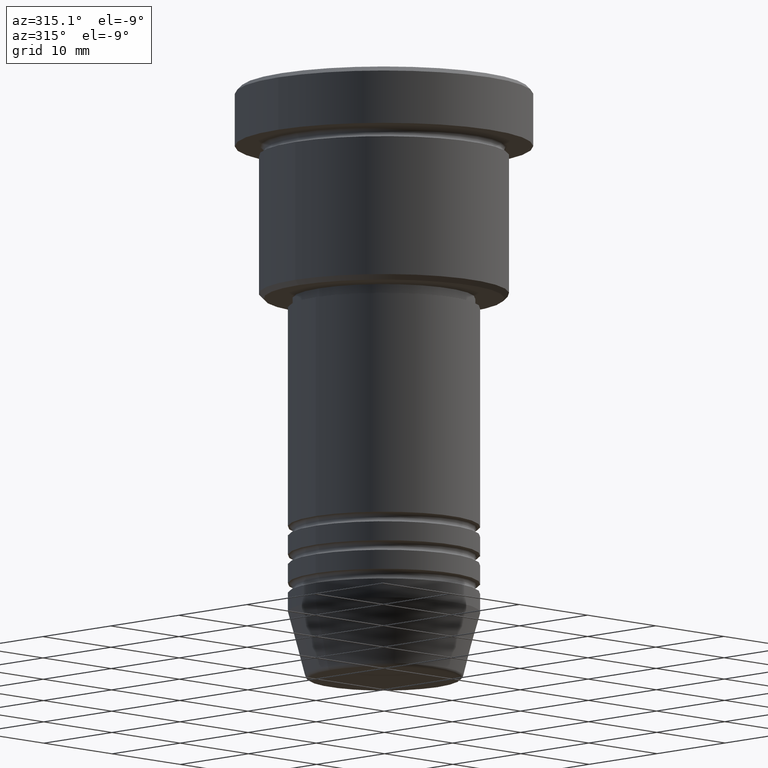
[diagram: clean part render]
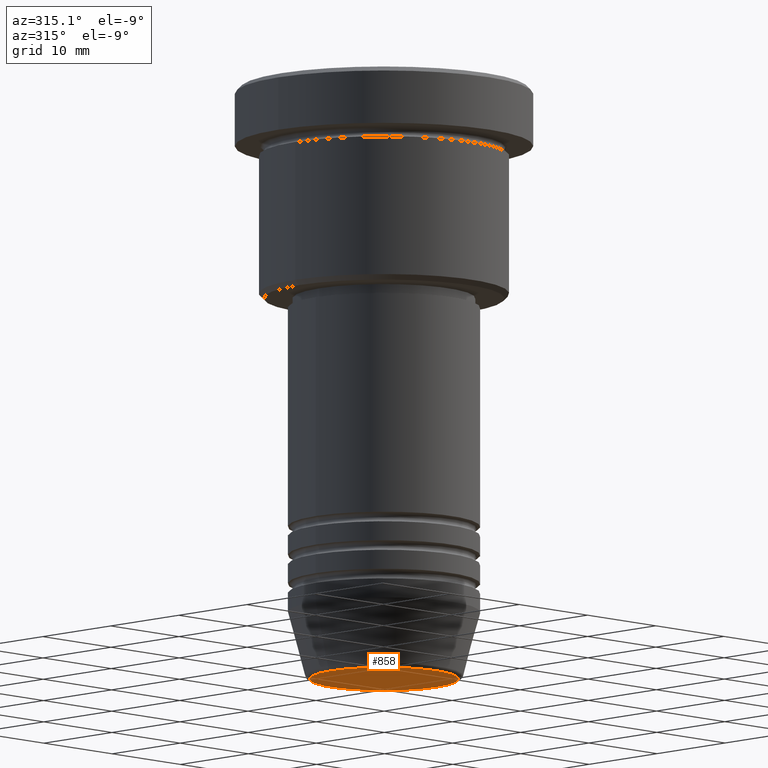
[diagram: same view with one face highlighted and labeled with its STEP entity id]
A machine part, auxiliary view. The second image highlights one B-rep face of the part: STEP entity #858.
In plain terms, the highlighted planar face has unit normal (0, -0, 1).
Its self-contained STEP definition (entity closure, byte-faithful):
#39 = DIRECTION ( 'NONE',  ( 1.000000000000000000, 0.000000000000000000, 0.000000000000000000 ) ) ;
#57 = ORIENTED_EDGE ( 'NONE', *, *, #979, .T. ) ;
#78 = DIRECTION ( 'NONE',  ( 0.000000000000000000, 0.000000000000000000, -1.000000000000000000 ) ) ;
#114 = PLANE ( 'NONE',  #1064 ) ;
#240 = CARTESIAN_POINT ( 'NONE',  ( 0.000000000000000000, 0.000000000000000000, -62.00000000000000000 ) ) ;
#310 = DIRECTION ( 'NONE',  ( 0.000000000000000000, 0.000000000000000000, -1.000000000000000000 ) ) ;
#316 = VERTEX_POINT ( 'NONE', #694 ) ;
#422 = CIRCLE ( 'NONE', #861, 7.740692158992656502 ) ;
#457 = CIRCLE ( 'NONE', #611, 7.740692158992656502 ) ;
#559 = DIRECTION ( 'NONE',  ( 1.000000000000000000, 0.000000000000000000, 0.000000000000000000 ) ) ;
#611 = AXIS2_PLACEMENT_3D ( 'NONE', #654, #310, #947 ) ;
#654 = CARTESIAN_POINT ( 'NONE',  ( 0.000000000000000000, 0.000000000000000000, -62.00000000000000000 ) ) ;
#694 = CARTESIAN_POINT ( 'NONE',  ( 7.740692158992656502, 0.000000000000000000, -62.00000000000000000 ) ) ;
#858 = ADVANCED_FACE ( 'NONE', ( #1121 ), #114, .F. ) ;
#861 = AXIS2_PLACEMENT_3D ( 'NONE', #240, #78, #39 ) ;
#873 = VERTEX_POINT ( 'NONE', #950 ) ;
#880 = ORIENTED_EDGE ( 'NONE', *, *, #1156, .T. ) ;
#932 = CARTESIAN_POINT ( 'NONE',  ( 0.000000000000000000, 0.000000000000000000, -62.00000000000000000 ) ) ;
#947 = DIRECTION ( 'NONE',  ( 1.000000000000000000, 0.000000000000000000, 0.000000000000000000 ) ) ;
#950 = CARTESIAN_POINT ( 'NONE',  ( -7.740692158992656502, 9.775343368540039135E-16, -62.00000000000000000 ) ) ;
#979 = EDGE_CURVE ( 'NONE', #316, #873, #422, .T. ) ;
#1022 = DIRECTION ( 'NONE',  ( 0.000000000000000000, -0.000000000000000000, 1.000000000000000000 ) ) ;
#1064 = AXIS2_PLACEMENT_3D ( 'NONE', #932, #1022, #559 ) ;
#1121 = FACE_OUTER_BOUND ( 'NONE', #1151, .T. ) ;
#1151 = EDGE_LOOP ( 'NONE', ( #57, #880 ) ) ;
#1156 = EDGE_CURVE ( 'NONE', #873, #316, #457, .T. ) ;